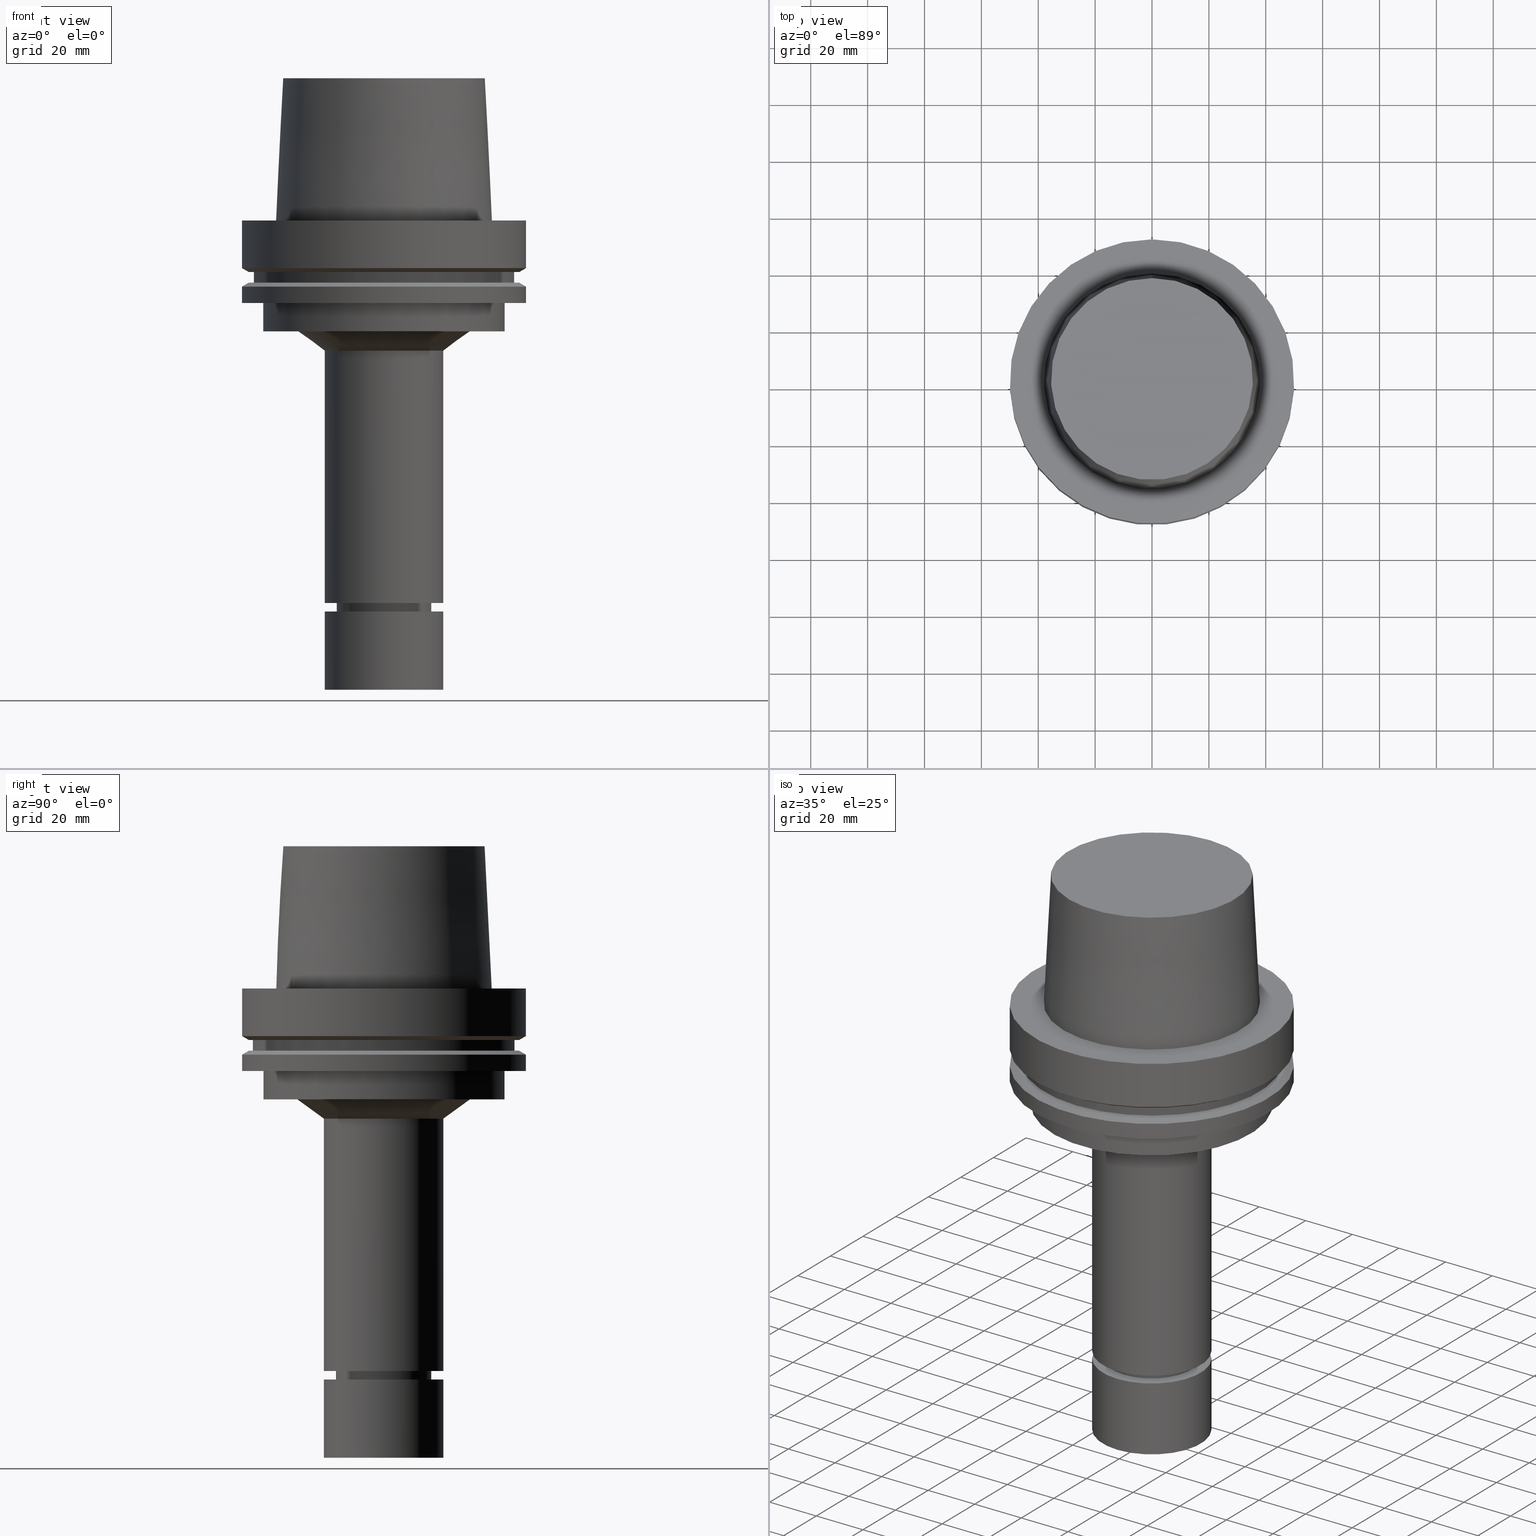
[diagram: canonical four-view strip — front | top / right | iso, engineering-drawing reading convention]
A machine part, canonical four-view strip (front | top / right | iso — engineering-drawing reading convention). The complete STEP part file that produces these views, byte-faithful:
ISO-10303-21;
HEADER;
FILE_DESCRIPTION((''),'1');
FILE_NAME('U:/Translate/02_3D_Field-HP\X2\FF71FF6FFF8CFF9F5916\X0\2013/02_Step_Field-HP\X2\FF71FF6FFF8CFF9F5916\X0\2013/HSK-A100-MEGAER25-165NL.stp','2016-06-22T02:35:38',(''),(''),'Spatial Interop R21 SP3','Kubotek KeyCreator 2011 V10.0.2 (22737)',' ');
FILE_SCHEMA(('automotive_design'));
ENDSEC;
DATA;
#1=MECHANICAL_DESIGN_GEOMETRIC_PRESENTATION_REPRESENTATION(' ',(#14,#15,#16,#17,#18,#19,#20,#21,#22,#23,#24,#25,#26,#27,#28,#29,#30,#31,#32,#33,#34,#35,#36,#37,#38,#39,#40,#41,#42,#43,#44,#45,#46,#47,#48,#49,#50,#51,#52,#53,#54,#55,#56,#57,#58,#59,#60,#61),#10);
#2=PRODUCT_DEFINITION_CONTEXT('',#62,'design');
#3=APPLICATION_PROTOCOL_DEFINITION('INTERNATIONAL STANDARD','automotive_design',1994,#62);
#4=PRODUCT_CATEGORY_RELATIONSHIP('NONE','NONE',#63,#64);
#5=SHAPE_DEFINITION_REPRESENTATION(#65,#66);
#6=PRODUCT_DEFINITION_CONTEXT('',#67,'design');
#7=APPLICATION_PROTOCOL_DEFINITION('INTERNATIONAL STANDARD','automotive_design',1994,#67);
#8=PRODUCT_CATEGORY_RELATIONSHIP('NONE','NONE',#68,#69);
#9=SHAPE_DEFINITION_REPRESENTATION(#70,#71);
#10= (GEOMETRIC_REPRESENTATION_CONTEXT(3)GLOBAL_UNCERTAINTY_ASSIGNED_CONTEXT((#74))GLOBAL_UNIT_ASSIGNED_CONTEXT((#76,#77,#78))REPRESENTATION_CONTEXT('NONE','WORKSPACE'));
#14=STYLED_ITEM('',(#80,#81),#82);
#15=STYLED_ITEM('',(#83),#84);
#16=STYLED_ITEM('',(#85),#86);
#17=STYLED_ITEM('',(#87,#88),#89);
#18=STYLED_ITEM('',(#90,#91),#92);
#19=STYLED_ITEM('',(#93,#94),#95);
#20=STYLED_ITEM('',(#96),#97);
#21=STYLED_ITEM('',(#98,#99),#100);
#22=STYLED_ITEM('',(#101),#102);
#23=STYLED_ITEM('',(#103,#104),#105);
#24=STYLED_ITEM('',(#106,#107),#108);
#25=STYLED_ITEM('',(#109,#110),#111);
#26=STYLED_ITEM('',(#112,#113),#114);
#27=STYLED_ITEM('',(#115),#116);
#28=STYLED_ITEM('',(#117),#118);
#29=STYLED_ITEM('',(#119),#120);
#30=STYLED_ITEM('',(#121,#122),#123);
#31=STYLED_ITEM('',(#124,#125),#126);
#32=STYLED_ITEM('',(#127,#128),#129);
#33=STYLED_ITEM('',(#130,#131),#132);
#34=STYLED_ITEM('',(#133),#134);
#35=STYLED_ITEM('',(#135,#136),#137);
#36=STYLED_ITEM('',(#138,#139),#140);
#37=STYLED_ITEM('',(#141,#142),#143);
#38=STYLED_ITEM('',(#144,#145),#146);
#39=STYLED_ITEM('',(#147,#148),#149);
#40=STYLED_ITEM('',(#150,#151),#152);
#41=STYLED_ITEM('',(#153,#154),#155);
#42=STYLED_ITEM('',(#156),#157);
#43=STYLED_ITEM('',(#158),#159);
#44=STYLED_ITEM('',(#160),#161);
#45=STYLED_ITEM('',(#162,#163),#164);
#46=STYLED_ITEM('',(#165),#166);
#47=STYLED_ITEM('',(#167),#168);
#48=STYLED_ITEM('',(#169),#170);
#49=STYLED_ITEM('',(#171),#172);
#50=STYLED_ITEM('',(#173,#174),#175);
#51=STYLED_ITEM('',(#176),#177);
#52=STYLED_ITEM('',(#178,#179),#180);
#53=STYLED_ITEM('',(#181),#182);
#54=STYLED_ITEM('',(#183),#184);
#55=STYLED_ITEM('',(#185),#186);
#56=STYLED_ITEM('',(#187,#188),#189);
#57=STYLED_ITEM('',(#190,#191),#192);
#58=STYLED_ITEM('',(#193),#194);
#59=STYLED_ITEM('',(#195),#196);
#60=STYLED_ITEM('',(#197),#198);
#61=STYLED_ITEM('',(#199,#200),#201);
#62=APPLICATION_CONTEXT(' ');
#63=PRODUCT_CATEGORY('part','NONE');
#64=PRODUCT_RELATED_PRODUCT_CATEGORY('detail',' ',(#202));
#65=PRODUCT_DEFINITION_SHAPE('NONE','NONE',#203);
#66=ADVANCED_BREP_SHAPE_REPRESENTATION('Unnamed[1]',(#126,#204),#10);
#67=APPLICATION_CONTEXT(' ');
#68=PRODUCT_CATEGORY('part','NONE');
#69=PRODUCT_RELATED_PRODUCT_CATEGORY('detail',' ',(#205));
#70=PRODUCT_DEFINITION_SHAPE('NONE','NONE',#206);
#71=ADVANCED_BREP_SHAPE_REPRESENTATION('Unnamed[1]',(#129,#207),#10);
#74=UNCERTAINTY_MEASURE_WITH_UNIT(LENGTH_MEASURE(1.0E-006),#76,'','');
#76= (CONVERSION_BASED_UNIT('MILLIMETRE',#210)LENGTH_UNIT()NAMED_UNIT(#213));
#77= (NAMED_UNIT(#215)PLANE_ANGLE_UNIT()SI_UNIT($,.RADIAN.));
#78= (NAMED_UNIT(#215)SOLID_ANGLE_UNIT()SI_UNIT($,.STERADIAN.));
#80=PRESENTATION_STYLE_ASSIGNMENT((#221));
#81=PRESENTATION_STYLE_ASSIGNMENT((#222));
#82=ADVANCED_FACE('Unnamed[1]',(#223,#224),#225,.T.);
#83=PRESENTATION_STYLE_ASSIGNMENT((#226));
#84=EDGE_CURVE('Unnamed[1]',#227,#227,#228,.T.);
#85=PRESENTATION_STYLE_ASSIGNMENT((#229));
#86=EDGE_CURVE('Unnamed[1]',#230,#230,#231,.T.);
#87=PRESENTATION_STYLE_ASSIGNMENT((#232));
#88=PRESENTATION_STYLE_ASSIGNMENT((#233));
#89=ADVANCED_FACE('Unnamed[1]',(#234,#235),#236,.T.);
#90=PRESENTATION_STYLE_ASSIGNMENT((#237));
#91=PRESENTATION_STYLE_ASSIGNMENT((#238));
#92=ADVANCED_FACE('Unnamed[1]',(#239,#240),#241,.T.);
#93=PRESENTATION_STYLE_ASSIGNMENT((#242));
#94=PRESENTATION_STYLE_ASSIGNMENT((#243));
#95=ADVANCED_FACE('Unnamed[1]',(#244,#245),#246,.T.);
#96=PRESENTATION_STYLE_ASSIGNMENT((#247));
#97=EDGE_CURVE('Unnamed[1]',#248,#248,#249,.T.);
#98=PRESENTATION_STYLE_ASSIGNMENT((#250));
#99=PRESENTATION_STYLE_ASSIGNMENT((#251));
#100=ADVANCED_FACE('Unnamed[1]',(#252,#253),#254,.T.);
#101=PRESENTATION_STYLE_ASSIGNMENT((#255));
#102=EDGE_CURVE('Unnamed[1]',#256,#256,#257,.T.);
#103=PRESENTATION_STYLE_ASSIGNMENT((#258));
#104=PRESENTATION_STYLE_ASSIGNMENT((#259));
#105=ADVANCED_FACE('Unnamed[1]',(#260,#261),#262,.T.);
#106=PRESENTATION_STYLE_ASSIGNMENT((#263));
#107=PRESENTATION_STYLE_ASSIGNMENT((#264));
#108=ADVANCED_FACE('Unnamed[1]',(#265,#266),#267,.T.);
#109=PRESENTATION_STYLE_ASSIGNMENT((#268));
#110=PRESENTATION_STYLE_ASSIGNMENT((#269));
#111=ADVANCED_FACE('Unnamed[1]',(#270,#271),#272,.T.);
#112=PRESENTATION_STYLE_ASSIGNMENT((#273));
#113=PRESENTATION_STYLE_ASSIGNMENT((#274));
#114=ADVANCED_FACE('Unnamed[1]',(#275,#276),#277,.T.);
#115=PRESENTATION_STYLE_ASSIGNMENT((#278));
#116=EDGE_CURVE('Unnamed[1]',#279,#279,#280,.T.);
#117=PRESENTATION_STYLE_ASSIGNMENT((#281));
#118=EDGE_CURVE('Unnamed[1]',#282,#282,#283,.T.);
#119=PRESENTATION_STYLE_ASSIGNMENT((#284));
#120=EDGE_CURVE('Unnamed[1]',#285,#285,#286,.T.);
#121=PRESENTATION_STYLE_ASSIGNMENT((#287));
#122=PRESENTATION_STYLE_ASSIGNMENT((#288));
#123=ADVANCED_FACE('Unnamed[1]',(#289,#290),#291,.T.);
#124=PRESENTATION_STYLE_ASSIGNMENT((#292));
#125=PRESENTATION_STYLE_ASSIGNMENT((#293));
#126=MANIFOLD_SOLID_BREP('Unnamed[1]',#294);
#127=PRESENTATION_STYLE_ASSIGNMENT((#295));
#128=PRESENTATION_STYLE_ASSIGNMENT((#296));
#129=MANIFOLD_SOLID_BREP('Unnamed[1]',#297);
#130=PRESENTATION_STYLE_ASSIGNMENT((#298));
#131=PRESENTATION_STYLE_ASSIGNMENT((#299));
#132=ADVANCED_FACE('Unnamed[1]',(#300,#301),#302,.T.);
#133=PRESENTATION_STYLE_ASSIGNMENT((#303));
#134=EDGE_CURVE('Unnamed[1]',#304,#304,#305,.T.);
#135=PRESENTATION_STYLE_ASSIGNMENT((#306));
#136=PRESENTATION_STYLE_ASSIGNMENT((#307));
#137=ADVANCED_FACE('Unnamed[1]',(#308,#309),#310,.T.);
#138=PRESENTATION_STYLE_ASSIGNMENT((#311));
#139=PRESENTATION_STYLE_ASSIGNMENT((#312));
#140=ADVANCED_FACE('Unnamed[1]',(#313),#314,.T.);
#141=PRESENTATION_STYLE_ASSIGNMENT((#315));
#142=PRESENTATION_STYLE_ASSIGNMENT((#316));
#143=ADVANCED_FACE('Unnamed[1]',(#317,#318),#319,.T.);
#144=PRESENTATION_STYLE_ASSIGNMENT((#320));
#145=PRESENTATION_STYLE_ASSIGNMENT((#321));
#146=ADVANCED_FACE('Unnamed[1]',(#322,#323),#324,.T.);
#147=PRESENTATION_STYLE_ASSIGNMENT((#325));
#148=PRESENTATION_STYLE_ASSIGNMENT((#326));
#149=ADVANCED_FACE('Unnamed[1]',(#327),#328,.T.);
#150=PRESENTATION_STYLE_ASSIGNMENT((#329));
#151=PRESENTATION_STYLE_ASSIGNMENT((#330));
#152=ADVANCED_FACE('Unnamed[1]',(#331,#332),#333,.T.);
#153=PRESENTATION_STYLE_ASSIGNMENT((#334));
#154=PRESENTATION_STYLE_ASSIGNMENT((#335));
#155=ADVANCED_FACE('Unnamed[1]',(#336,#337),#338,.T.);
#156=PRESENTATION_STYLE_ASSIGNMENT((#339));
#157=EDGE_CURVE('Unnamed[1]',#340,#340,#341,.T.);
#158=PRESENTATION_STYLE_ASSIGNMENT((#342));
#159=EDGE_CURVE('Unnamed[1]',#343,#343,#344,.T.);
#160=PRESENTATION_STYLE_ASSIGNMENT((#345));
#161=EDGE_CURVE('Unnamed[1]',#346,#346,#347,.T.);
#162=PRESENTATION_STYLE_ASSIGNMENT((#348));
#163=PRESENTATION_STYLE_ASSIGNMENT((#349));
#164=ADVANCED_FACE('Unnamed[1]',(#350,#351),#352,.T.);
#165=PRESENTATION_STYLE_ASSIGNMENT((#353));
#166=EDGE_CURVE('Unnamed[1]',#354,#354,#355,.T.);
#167=PRESENTATION_STYLE_ASSIGNMENT((#356));
#168=EDGE_CURVE('Unnamed[1]',#357,#357,#358,.T.);
#169=PRESENTATION_STYLE_ASSIGNMENT((#359));
#170=EDGE_CURVE('Unnamed[1]',#360,#360,#361,.T.);
#171=PRESENTATION_STYLE_ASSIGNMENT((#362));
#172=EDGE_CURVE('Unnamed[1]',#363,#363,#364,.T.);
#173=PRESENTATION_STYLE_ASSIGNMENT((#365));
#174=PRESENTATION_STYLE_ASSIGNMENT((#366));
#175=ADVANCED_FACE('Unnamed[1]',(#367,#368),#369,.T.);
#176=PRESENTATION_STYLE_ASSIGNMENT((#370));
#177=EDGE_CURVE('Unnamed[1]',#371,#371,#372,.T.);
#178=PRESENTATION_STYLE_ASSIGNMENT((#373));
#179=PRESENTATION_STYLE_ASSIGNMENT((#374));
#180=ADVANCED_FACE('Unnamed[1]',(#375,#376),#377,.T.);
#181=PRESENTATION_STYLE_ASSIGNMENT((#378));
#182=EDGE_CURVE('Unnamed[1]',#379,#379,#380,.T.);
#183=PRESENTATION_STYLE_ASSIGNMENT((#381));
#184=EDGE_CURVE('Unnamed[1]',#382,#382,#383,.T.);
#185=PRESENTATION_STYLE_ASSIGNMENT((#384));
#186=EDGE_CURVE('Unnamed[1]',#385,#385,#386,.T.);
#187=PRESENTATION_STYLE_ASSIGNMENT((#387));
#188=PRESENTATION_STYLE_ASSIGNMENT((#388));
#189=ADVANCED_FACE('Unnamed[1]',(#389,#390),#391,.T.);
#190=PRESENTATION_STYLE_ASSIGNMENT((#392));
#191=PRESENTATION_STYLE_ASSIGNMENT((#393));
#192=ADVANCED_FACE('Unnamed[1]',(#394),#395,.T.);
#193=PRESENTATION_STYLE_ASSIGNMENT((#396));
#194=EDGE_CURVE('Unnamed[1]',#397,#397,#398,.T.);
#195=PRESENTATION_STYLE_ASSIGNMENT((#399));
#196=EDGE_CURVE('Unnamed[1]',#400,#400,#401,.T.);
#197=PRESENTATION_STYLE_ASSIGNMENT((#402));
#198=EDGE_CURVE('Unnamed[1]',#403,#403,#404,.T.);
#199=PRESENTATION_STYLE_ASSIGNMENT((#405));
#200=PRESENTATION_STYLE_ASSIGNMENT((#406));
#201=ADVANCED_FACE('Unnamed[1]',(#407),#408,.T.);
#202=PRODUCT('Unnamed[1]','Unnamed[1]','PART-Unnamed[1]-DESC',(#409));
#203=PRODUCT_DEFINITION('NONE','NONE',#410,#2);
#204=AXIS2_PLACEMENT_3D('',#411,#412,#413);
#205=PRODUCT('Unnamed[1]','Unnamed[1]','PART-Unnamed[1]-DESC',(#414));
#206=PRODUCT_DEFINITION('NONE','NONE',#415,#6);
#207=AXIS2_PLACEMENT_3D('',#416,#417,#418);
#210=LENGTH_MEASURE_WITH_UNIT(LENGTH_MEASURE(1.0),#419);
#213=DIMENSIONAL_EXPONENTS(1.0,0.0,0.0,0.0,0.0,0.0,0.0);
#215=DIMENSIONAL_EXPONENTS(0.0,0.0,0.0,0.0,0.0,0.0,0.0);
#221=SURFACE_STYLE_USAGE(.BOTH.,#420);
#222=CURVE_STYLE('',#421,POSITIVE_LENGTH_MEASURE(1000.0),#422);
#223=FACE_BOUND('',#423,.T.);
#224=FACE_BOUND('',#424,.T.);
#225=CONICAL_SURFACE('',#425,25.6596647228031,0.942916776537841);
#226=CURVE_STYLE('',#426,POSITIVE_LENGTH_MEASURE(1000.0),#427);
#227=VERTEX_POINT('',#428);
#228=CIRCLE('',#429,46.0);
#229=CURVE_STYLE('',#430,POSITIVE_LENGTH_MEASURE(1000.0),#431);
#230=VERTEX_POINT('',#432);
#231=CIRCLE('',#433,30.3193294456062);
#232=SURFACE_STYLE_USAGE(.BOTH.,#434);
#233=CURVE_STYLE('',#435,POSITIVE_LENGTH_MEASURE(1000.0),#436);
#234=FACE_OUTER_BOUND('',#437,.T.);
#235=FACE_BOUND('',#438,.T.);
#236=PLANE('',#439);
#237=SURFACE_STYLE_USAGE(.BOTH.,#440);
#238=CURVE_STYLE('',#441,POSITIVE_LENGTH_MEASURE(1000.0),#442);
#239=FACE_BOUND('',#443,.T.);
#240=FACE_BOUND('',#444,.T.);
#241=CYLINDRICAL_SURFACE('',#445,46.0);
#242=SURFACE_STYLE_USAGE(.BOTH.,#446);
#243=CURVE_STYLE('',#447,POSITIVE_LENGTH_MEASURE(1000.0),#448);
#244=FACE_BOUND('',#449,.T.);
#245=FACE_BOUND('',#450,.T.);
#246=CONICAL_SURFACE('',#451,15.4500000000003,0.523598775598051);
#247=CURVE_STYLE('',#452,POSITIVE_LENGTH_MEASURE(1000.0),#453);
#248=VERTEX_POINT('',#454);
#249=CIRCLE('',#455,47.62259526);
#250=SURFACE_STYLE_USAGE(.BOTH.,#456);
#251=CURVE_STYLE('',#457,POSITIVE_LENGTH_MEASURE(1000.0),#458);
#252=FACE_BOUND('',#459,.T.);
#253=FACE_BOUND('',#460,.T.);
#254=CYLINDRICAL_SURFACE('',#461,21.0);
#255=CURVE_STYLE('',#462,POSITIVE_LENGTH_MEASURE(1000.0),#463);
#256=VERTEX_POINT('',#464);
#257=CIRCLE('',#465,47.62259526);
#258=SURFACE_STYLE_USAGE(.BOTH.,#466);
#259=CURVE_STYLE('',#467,POSITIVE_LENGTH_MEASURE(1000.0),#468);
#260=FACE_BOUND('',#469,.T.);
#261=FACE_BOUND('',#470,.T.);
#262=CONICAL_SURFACE('',#471,36.7500000007484,0.0499583956894843);
#263=SURFACE_STYLE_USAGE(.BOTH.,#472);
#264=CURVE_STYLE('',#473,POSITIVE_LENGTH_MEASURE(1000.0),#474);
#265=FACE_BOUND('',#475,.T.);
#266=FACE_OUTER_BOUND('',#476,.T.);
#267=PLANE('',#477);
#268=SURFACE_STYLE_USAGE(.BOTH.,#478);
#269=CURVE_STYLE('',#479,POSITIVE_LENGTH_MEASURE(1000.0),#480);
#270=FACE_BOUND('',#481,.T.);
#271=FACE_BOUND('',#482,.T.);
#272=CONICAL_SURFACE('',#483,48.81129763,1.04719755328238);
#273=SURFACE_STYLE_USAGE(.BOTH.,#484);
#274=CURVE_STYLE('',#485,POSITIVE_LENGTH_MEASURE(1000.0),#486);
#275=FACE_BOUND('',#487,.T.);
#276=FACE_BOUND('',#488,.T.);
#277=CYLINDRICAL_SURFACE('',#489,50.0);
#278=CURVE_STYLE('',#490,POSITIVE_LENGTH_MEASURE(1000.0),#491);
#279=VERTEX_POINT('',#492);
#280=CIRCLE('',#493,16.7499999999907);
#281=CURVE_STYLE('',#494,POSITIVE_LENGTH_MEASURE(1000.0),#495);
#282=VERTEX_POINT('',#496);
#283=CIRCLE('',#497,21.0);
#284=CURVE_STYLE('',#498,POSITIVE_LENGTH_MEASURE(1000.0),#499);
#285=VERTEX_POINT('',#500);
#286=CIRCLE('',#501,35.5000000015618);
#287=SURFACE_STYLE_USAGE(.BOTH.,#502);
#288=CURVE_STYLE('',#503,POSITIVE_LENGTH_MEASURE(1000.0),#504);
#289=FACE_BOUND('',#505,.T.);
#290=FACE_BOUND('',#506,.T.);
#291=CYLINDRICAL_SURFACE('',#507,50.0);
#292=SURFACE_STYLE_USAGE(.BOTH.,#508);
#293=CURVE_STYLE('',#509,POSITIVE_LENGTH_MEASURE(1000.0),#510);
#294=CLOSED_SHELL('',(#140,#105,#89,#123,#111,#180,#92,#175,#152,#114,#164,#137,#108,#82,#132,#155,#189,#143,#146,#95,#149));
#295=SURFACE_STYLE_USAGE(.BOTH.,#511);
#296=CURVE_STYLE('',#512,POSITIVE_LENGTH_MEASURE(1000.0),#513);
#297=CLOSED_SHELL('',(#201,#192,#100));
#298=SURFACE_STYLE_USAGE(.BOTH.,#514);
#299=CURVE_STYLE('',#515,POSITIVE_LENGTH_MEASURE(1000.0),#516);
#300=FACE_BOUND('',#517,.T.);
#301=FACE_BOUND('',#518,.T.);
#302=CYLINDRICAL_SURFACE('',#519,21.0);
#303=CURVE_STYLE('',#520,POSITIVE_LENGTH_MEASURE(1000.0),#521);
#304=VERTEX_POINT('',#522);
#305=CIRCLE('',#523,21.0);
#306=SURFACE_STYLE_USAGE(.BOTH.,#524);
#307=CURVE_STYLE('',#525,POSITIVE_LENGTH_MEASURE(1000.0),#526);
#308=FACE_BOUND('',#527,.T.);
#309=FACE_BOUND('',#528,.T.);
#310=CYLINDRICAL_SURFACE('',#529,42.5);
#311=SURFACE_STYLE_USAGE(.BOTH.,#530);
#312=CURVE_STYLE('',#531,POSITIVE_LENGTH_MEASURE(1000.0),#532);
#313=FACE_OUTER_BOUND('',#533,.T.);
#314=PLANE('',#534);
#315=SURFACE_STYLE_USAGE(.BOTH.,#535);
#316=CURVE_STYLE('',#536,POSITIVE_LENGTH_MEASURE(1000.0),#537);
#317=FACE_BOUND('',#538,.T.);
#318=FACE_BOUND('',#539,.T.);
#319=CONICAL_SURFACE('',#540,16.3750000000008,0.846178977407518);
#320=SURFACE_STYLE_USAGE(.BOTH.,#541);
#321=CURVE_STYLE('',#542,POSITIVE_LENGTH_MEASURE(1000.0),#543);
#322=FACE_BOUND('',#544,.T.);
#323=FACE_BOUND('',#545,.T.);
#324=CYLINDRICAL_SURFACE('',#546,16.0);
#325=SURFACE_STYLE_USAGE(.BOTH.,#547);
#326=CURVE_STYLE('',#548,POSITIVE_LENGTH_MEASURE(1000.0),#549);
#327=FACE_OUTER_BOUND('',#550,.T.);
#328=PLANE('',#551);
#329=SURFACE_STYLE_USAGE(.BOTH.,#552);
#330=CURVE_STYLE('',#553,POSITIVE_LENGTH_MEASURE(1000.0),#554);
#331=FACE_BOUND('',#555,.T.);
#332=FACE_BOUND('',#556,.T.);
#333=CONICAL_SURFACE('',#557,48.81129763,1.04719755328238);
#334=SURFACE_STYLE_USAGE(.BOTH.,#558);
#335=CURVE_STYLE('',#559,POSITIVE_LENGTH_MEASURE(1000.0),#560);
#336=FACE_BOUND('',#561,.T.);
#337=FACE_OUTER_BOUND('',#562,.T.);
#338=PLANE('',#563);
#339=CURVE_STYLE('',#564,POSITIVE_LENGTH_MEASURE(1000.0),#565);
#340=VERTEX_POINT('',#566);
#341=CIRCLE('',#567,37.9999999999349);
#342=CURVE_STYLE('',#568,POSITIVE_LENGTH_MEASURE(1000.0),#569);
#343=VERTEX_POINT('',#570);
#344=CIRCLE('',#571,46.0);
#345=CURVE_STYLE('',#572,POSITIVE_LENGTH_MEASURE(1000.0),#573);
#346=VERTEX_POINT('',#574);
#347=CIRCLE('',#575,50.0);
#348=SURFACE_STYLE_USAGE(.BOTH.,#576);
#349=CURVE_STYLE('',#577,POSITIVE_LENGTH_MEASURE(1000.0),#578);
#350=FACE_BOUND('',#579,.T.);
#351=FACE_OUTER_BOUND('',#580,.T.);
#352=PLANE('',#581);
#353=CURVE_STYLE('',#582,POSITIVE_LENGTH_MEASURE(1000.0),#583);
#354=VERTEX_POINT('',#584);
#355=CIRCLE('',#585,50.0);
#356=CURVE_STYLE('',#586,POSITIVE_LENGTH_MEASURE(1000.0),#587);
#357=VERTEX_POINT('',#588);
#358=CIRCLE('',#589,42.5);
#359=CURVE_STYLE('',#590,POSITIVE_LENGTH_MEASURE(1000.0),#591);
#360=VERTEX_POINT('',#592);
#361=CIRCLE('',#593,21.0);
#362=CURVE_STYLE('',#594,POSITIVE_LENGTH_MEASURE(1000.0),#595);
#363=VERTEX_POINT('',#596);
#364=CIRCLE('',#597,16.7500000000017);
#365=SURFACE_STYLE_USAGE(.BOTH.,#598);
#366=CURVE_STYLE('',#599,POSITIVE_LENGTH_MEASURE(1000.0),#600);
#367=FACE_OUTER_BOUND('',#601,.T.);
#368=FACE_BOUND('',#602,.T.);
#369=PLANE('',#603);
#370=CURVE_STYLE('',#604,POSITIVE_LENGTH_MEASURE(1000.0),#605);
#371=VERTEX_POINT('',#606);
#372=CIRCLE('',#607,50.0);
#373=SURFACE_STYLE_USAGE(.BOTH.,#608);
#374=CURVE_STYLE('',#609,POSITIVE_LENGTH_MEASURE(1000.0),#610);
#375=FACE_BOUND('',#611,.T.);
#376=FACE_OUTER_BOUND('',#612,.T.);
#377=PLANE('',#613);
#378=CURVE_STYLE('',#614,POSITIVE_LENGTH_MEASURE(1000.0),#615);
#379=VERTEX_POINT('',#616);
#380=CIRCLE('',#617,16.0);
#381=CURVE_STYLE('',#618,POSITIVE_LENGTH_MEASURE(1000.0),#619);
#382=VERTEX_POINT('',#620);
#383=CIRCLE('',#621,16.0);
#384=CURVE_STYLE('',#622,POSITIVE_LENGTH_MEASURE(1000.0),#623);
#385=VERTEX_POINT('',#624);
#386=CIRCLE('',#625,14.9000000000006);
#387=SURFACE_STYLE_USAGE(.BOTH.,#626);
#388=CURVE_STYLE('',#627,POSITIVE_LENGTH_MEASURE(1000.0),#628);
#389=FACE_BOUND('',#629,.T.);
#390=FACE_BOUND('',#630,.T.);
#391=CYLINDRICAL_SURFACE('',#631,16.7499999999962);
#392=SURFACE_STYLE_USAGE(.BOTH.,#632);
#393=CURVE_STYLE('',#633,POSITIVE_LENGTH_MEASURE(1000.0),#634);
#394=FACE_OUTER_BOUND('',#635,.T.);
#395=PLANE('',#636);
#396=CURVE_STYLE('',#637,POSITIVE_LENGTH_MEASURE(1000.0),#638);
#397=VERTEX_POINT('',#639);
#398=CIRCLE('',#640,21.0);
#399=CURVE_STYLE('',#641,POSITIVE_LENGTH_MEASURE(1000.0),#642);
#400=VERTEX_POINT('',#643);
#401=CIRCLE('',#644,42.5);
#402=CURVE_STYLE('',#645,POSITIVE_LENGTH_MEASURE(1000.0),#646);
#403=VERTEX_POINT('',#647);
#404=CIRCLE('',#648,50.0);
#405=SURFACE_STYLE_USAGE(.BOTH.,#649);
#406=CURVE_STYLE('',#650,POSITIVE_LENGTH_MEASURE(1000.0),#651);
#407=FACE_OUTER_BOUND('',#652,.T.);
#408=PLANE('',#653);
#409=PRODUCT_CONTEXT('',#62,'mechanical');
#410=PRODUCT_DEFINITION_FORMATION_WITH_SPECIFIED_SOURCE(' ','NONE',#202,.NOT_KNOWN.);
#411=CARTESIAN_POINT('',(0.0,0.0,0.0));
#412=DIRECTION('',(0.0,0.0,1.0));
#413=DIRECTION('',(1.0,0.0,0.0));
#414=PRODUCT_CONTEXT('',#67,'mechanical');
#415=PRODUCT_DEFINITION_FORMATION_WITH_SPECIFIED_SOURCE(' ','NONE',#205,.NOT_KNOWN.);
#416=CARTESIAN_POINT('',(0.0,0.0,0.0));
#417=DIRECTION('',(0.0,0.0,1.0));
#418=DIRECTION('',(1.0,0.0,0.0));
#419= (NAMED_UNIT(#213)LENGTH_UNIT()SI_UNIT(.MILLI.,.METRE.));
#420=SURFACE_SIDE_STYLE('',(#655));
#421=DRAUGHTING_PRE_DEFINED_CURVE_FONT('continuous');
#422=COLOUR_RGB('',0.0,1.0,0.0);
#423=EDGE_LOOP('',(#656));
#424=EDGE_LOOP('',(#657));
#425=AXIS2_PLACEMENT_3D('',#658,#659,#660);
#426=DRAUGHTING_PRE_DEFINED_CURVE_FONT('continuous');
#427=COLOUR_RGB('',0.0,1.0,0.0);
#428=CARTESIAN_POINT('',(1.10983616172729E-015,46.0,-18.125));
#429=AXIS2_PLACEMENT_3D('',#661,#662,#663);
#430=DRAUGHTING_PRE_DEFINED_CURVE_FONT('continuous');
#431=COLOUR_RGB('',0.0,1.0,0.0);
#432=CARTESIAN_POINT('',(2.38806125833734E-015,30.3193294456062,-39.0));
#433=AXIS2_PLACEMENT_3D('',#664,#665,#666);
#434=SURFACE_SIDE_STYLE('',(#667));
#435=DRAUGHTING_PRE_DEFINED_CURVE_FONT('continuous');
#436=COLOUR_RGB('',0.0,1.0,0.0);
#437=EDGE_LOOP('',(#668));
#438=EDGE_LOOP('',(#669));
#439=AXIS2_PLACEMENT_3D('',#670,#671,#672);
#440=SURFACE_SIDE_STYLE('',(#673));
#441=DRAUGHTING_PRE_DEFINED_CURVE_FONT('continuous');
#442=COLOUR_RGB('',0.0,1.0,0.0);
#443=EDGE_LOOP('',(#674));
#444=EDGE_LOOP('',(#675));
#445=AXIS2_PLACEMENT_3D('',#676,#677,#678);
#446=SURFACE_SIDE_STYLE('',(#679));
#447=DRAUGHTING_PRE_DEFINED_CURVE_FONT('continuous');
#448=COLOUR_RGB('',0.0,1.0,0.0);
#449=EDGE_LOOP('',(#680));
#450=EDGE_LOOP('',(#681));
#451=AXIS2_PLACEMENT_3D('',#682,#683,#684);
#452=DRAUGHTING_PRE_DEFINED_CURVE_FONT('continuous');
#453=COLOUR_RGB('',0.0,1.0,0.0);
#454=CARTESIAN_POINT('',(1.10983616172729E-015,47.62259526,-18.125));
#455=AXIS2_PLACEMENT_3D('',#685,#686,#687);
#456=SURFACE_SIDE_STYLE('',(#688));
#457=DRAUGHTING_PRE_DEFINED_CURVE_FONT('continuous');
#458=COLOUR_RGB('',0.0,1.0,0.0);
#459=EDGE_LOOP('',(#689));
#460=EDGE_LOOP('',(#690));
#461=AXIS2_PLACEMENT_3D('',#691,#692,#693);
#462=DRAUGHTING_PRE_DEFINED_CURVE_FONT('continuous');
#463=COLOUR_RGB('',0.0,1.0,0.0);
#464=CARTESIAN_POINT('',(1.33945743656742E-015,47.62259526,-21.875));
#465=AXIS2_PLACEMENT_3D('',#694,#695,#696);
#466=SURFACE_SIDE_STYLE('',(#697));
#467=DRAUGHTING_PRE_DEFINED_CURVE_FONT('continuous');
#468=COLOUR_RGB('',0.0,1.0,0.0);
#469=EDGE_LOOP('',(#698));
#470=EDGE_LOOP('',(#699));
#471=AXIS2_PLACEMENT_3D('',#700,#701,#702);
#472=SURFACE_SIDE_STYLE('',(#703));
#473=DRAUGHTING_PRE_DEFINED_CURVE_FONT('continuous');
#474=COLOUR_RGB('',0.0,1.0,0.0);
#475=EDGE_LOOP('',(#704));
#476=EDGE_LOOP('',(#705));
#477=AXIS2_PLACEMENT_3D('',#706,#707,#708);
#478=SURFACE_SIDE_STYLE('',(#709));
#479=DRAUGHTING_PRE_DEFINED_CURVE_FONT('continuous');
#480=COLOUR_RGB('',0.0,1.0,0.0);
#481=EDGE_LOOP('',(#710));
#482=EDGE_LOOP('',(#711));
#483=AXIS2_PLACEMENT_3D('',#712,#713,#714);
#484=SURFACE_SIDE_STYLE('',(#715));
#485=DRAUGHTING_PRE_DEFINED_CURVE_FONT('continuous');
#486=COLOUR_RGB('',0.0,1.0,0.0);
#487=EDGE_LOOP('',(#716));
#488=EDGE_LOOP('',(#717));
#489=AXIS2_PLACEMENT_3D('',#718,#719,#720);
#490=DRAUGHTING_PRE_DEFINED_CURVE_FONT('continuous');
#491=COLOUR_RGB('',0.0,1.0,0.0);
#492=CARTESIAN_POINT('',(8.2357497242659E-015,16.7499999999907,-134.499999999999));
#493=AXIS2_PLACEMENT_3D('',#721,#722,#723);
#494=DRAUGHTING_PRE_DEFINED_CURVE_FONT('continuous');
#495=COLOUR_RGB('',0.0,1.0,0.0);
#496=CARTESIAN_POINT('',(8.41944674413805E-015,21.0,-137.5));
#497=AXIS2_PLACEMENT_3D('',#724,#725,#726);
#498=DRAUGHTING_PRE_DEFINED_CURVE_FONT('continuous');
#499=COLOUR_RGB('',0.0,1.0,0.0);
#500=CARTESIAN_POINT('',(-3.06161699786838E-015,35.5000000015618,50.0));
#501=AXIS2_PLACEMENT_3D('',#727,#728,#729);
#502=SURFACE_SIDE_STYLE('',(#730));
#503=DRAUGHTING_PRE_DEFINED_CURVE_FONT('continuous');
#504=COLOUR_RGB('',0.0,1.0,0.0);
#505=EDGE_LOOP('',(#731));
#506=EDGE_LOOP('',(#732));
#507=AXIS2_PLACEMENT_3D('',#733,#734,#735);
#508=SURFACE_SIDE_STYLE('',(#736));
#509=DRAUGHTING_PRE_DEFINED_CURVE_FONT('continuous');
#510=COLOUR_RGB('',0.0,1.0,0.0);
#511=SURFACE_SIDE_STYLE('',(#737));
#512=DRAUGHTING_PRE_DEFINED_CURVE_FONT('continuous');
#513=COLOUR_RGB('',0.0,1.0,0.0);
#514=SURFACE_SIDE_STYLE('',(#738));
#515=DRAUGHTING_PRE_DEFINED_CURVE_FONT('continuous');
#516=COLOUR_RGB('',0.0,1.0,0.0);
#517=EDGE_LOOP('',(#739));
#518=EDGE_LOOP('',(#740));
#519=AXIS2_PLACEMENT_3D('',#741,#742,#743);
#520=DRAUGHTING_PRE_DEFINED_CURVE_FONT('continuous');
#521=COLOUR_RGB('',0.0,1.0,0.0);
#522=CARTESIAN_POINT('',(1.01033360929657E-014,21.0,-165.0));
#523=AXIS2_PLACEMENT_3D('',#744,#745,#746);
#524=SURFACE_SIDE_STYLE('',(#747));
#525=DRAUGHTING_PRE_DEFINED_CURVE_FONT('continuous');
#526=COLOUR_RGB('',0.0,1.0,0.0);
#527=EDGE_LOOP('',(#748));
#528=EDGE_LOOP('',(#749));
#529=AXIS2_PLACEMENT_3D('',#750,#751,#752);
#530=SURFACE_SIDE_STYLE('',(#753));
#531=DRAUGHTING_PRE_DEFINED_CURVE_FONT('continuous');
#532=COLOUR_RGB('',0.0,1.0,0.0);
#533=EDGE_LOOP('',(#754));
#534=AXIS2_PLACEMENT_3D('',#755,#756,#757);
#535=SURFACE_SIDE_STYLE('',(#758));
#536=DRAUGHTING_PRE_DEFINED_CURVE_FONT('continuous');
#537=COLOUR_RGB('',0.0,1.0,0.0);
#538=EDGE_LOOP('',(#759));
#539=EDGE_LOOP('',(#760));
#540=AXIS2_PLACEMENT_3D('',#761,#762,#763);
#541=SURFACE_SIDE_STYLE('',(#764));
#542=DRAUGHTING_PRE_DEFINED_CURVE_FONT('continuous');
#543=COLOUR_RGB('',0.0,1.0,0.0);
#544=EDGE_LOOP('',(#765));
#545=EDGE_LOOP('',(#766));
#546=AXIS2_PLACEMENT_3D('',#767,#768,#769);
#547=SURFACE_SIDE_STYLE('',(#770));
#548=DRAUGHTING_PRE_DEFINED_CURVE_FONT('continuous');
#549=COLOUR_RGB('',0.0,1.0,0.0);
#550=EDGE_LOOP('',(#771));
#551=AXIS2_PLACEMENT_3D('',#772,#773,#774);
#552=SURFACE_SIDE_STYLE('',(#775));
#553=DRAUGHTING_PRE_DEFINED_CURVE_FONT('continuous');
#554=COLOUR_RGB('',0.0,1.0,0.0);
#555=EDGE_LOOP('',(#776));
#556=EDGE_LOOP('',(#777));
#557=AXIS2_PLACEMENT_3D('',#778,#779,#780);
#558=SURFACE_SIDE_STYLE('',(#781));
#559=DRAUGHTING_PRE_DEFINED_CURVE_FONT('continuous');
#560=COLOUR_RGB('',0.0,1.0,0.0);
#561=EDGE_LOOP('',(#782));
#562=EDGE_LOOP('',(#783));
#563=AXIS2_PLACEMENT_3D('',#784,#785,#786);
#564=DRAUGHTING_PRE_DEFINED_CURVE_FONT('continuous');
#565=COLOUR_RGB('',0.0,1.0,0.0);
#566=CARTESIAN_POINT('',(-3.3636548776863E-032,37.9999999999349,-2.44634216324803E-015));
#567=AXIS2_PLACEMENT_3D('',#787,#788,#789);
#568=DRAUGHTING_PRE_DEFINED_CURVE_FONT('continuous');
#569=COLOUR_RGB('',0.0,1.0,0.0);
#570=CARTESIAN_POINT('',(1.33945743656742E-015,46.0,-21.875));
#571=AXIS2_PLACEMENT_3D('',#790,#791,#792);
#572=DRAUGHTING_PRE_DEFINED_CURVE_FONT('continuous');
#573=COLOUR_RGB('',0.0,1.0,0.0);
#574=CARTESIAN_POINT('',(1.77573785876366E-015,50.0,-29.0));
#575=AXIS2_PLACEMENT_3D('',#793,#794,#795);
#576=SURFACE_SIDE_STYLE('',(#796));
#577=DRAUGHTING_PRE_DEFINED_CURVE_FONT('continuous');
#578=COLOUR_RGB('',0.0,1.0,0.0);
#579=EDGE_LOOP('',(#797));
#580=EDGE_LOOP('',(#798));
#581=AXIS2_PLACEMENT_3D('',#799,#800,#801);
#582=DRAUGHTING_PRE_DEFINED_CURVE_FONT('continuous');
#583=COLOUR_RGB('',0.0,1.0,0.0);
#584=CARTESIAN_POINT('',(1.0257889421431E-015,50.0,-16.75240474));
#585=AXIS2_PLACEMENT_3D('',#802,#803,#804);
#586=DRAUGHTING_PRE_DEFINED_CURVE_FONT('continuous');
#587=COLOUR_RGB('',0.0,1.0,0.0);
#588=CARTESIAN_POINT('',(1.77573785876366E-015,42.5,-29.0));
#589=AXIS2_PLACEMENT_3D('',#805,#806,#807);
#590=DRAUGHTING_PRE_DEFINED_CURVE_FONT('continuous');
#591=COLOUR_RGB('',0.0,1.0,0.0);
#592=CARTESIAN_POINT('',(8.23574972426594E-015,21.0,-134.5));
#593=AXIS2_PLACEMENT_3D('',#808,#809,#810);
#594=DRAUGHTING_PRE_DEFINED_CURVE_FONT('continuous');
#595=COLOUR_RGB('',0.0,1.0,0.0);
#596=CARTESIAN_POINT('',(8.60114298906008E-015,16.7500000000017,-140.467324865398));
#597=AXIS2_PLACEMENT_3D('',#811,#812,#813);
#598=SURFACE_SIDE_STYLE('',(#814));
#599=DRAUGHTING_PRE_DEFINED_CURVE_FONT('continuous');
#600=COLOUR_RGB('',0.0,1.0,0.0);
#601=EDGE_LOOP('',(#815));
#602=EDGE_LOOP('',(#816));
#603=AXIS2_PLACEMENT_3D('',#817,#818,#819);
#604=DRAUGHTING_PRE_DEFINED_CURVE_FONT('continuous');
#605=COLOUR_RGB('',0.0,1.0,0.0);
#606=CARTESIAN_POINT('',(-1.81547968506605E-031,50.0,-9.76766004263236E-016));
#607=AXIS2_PLACEMENT_3D('',#820,#821,#822);
#608=SURFACE_SIDE_STYLE('',(#823));
#609=DRAUGHTING_PRE_DEFINED_CURVE_FONT('continuous');
#610=COLOUR_RGB('',0.0,1.0,0.0);
#611=EDGE_LOOP('',(#824));
#612=EDGE_LOOP('',(#825));
#613=AXIS2_PLACEMENT_3D('',#826,#827,#828);
#614=DRAUGHTING_PRE_DEFINED_CURVE_FONT('continuous');
#615=COLOUR_RGB('',0.0,1.0,0.0);
#616=CARTESIAN_POINT('',(8.64179837321123E-015,16.0,-141.131277674967));
#617=AXIS2_PLACEMENT_3D('',#829,#830,#831);
#618=DRAUGHTING_PRE_DEFINED_CURVE_FONT('continuous');
#619=COLOUR_RGB('',0.0,1.0,0.0);
#620=CARTESIAN_POINT('',(9.36210294914078E-015,16.0,-152.894744111674));
#621=AXIS2_PLACEMENT_3D('',#832,#833,#834);
#622=DRAUGHTING_PRE_DEFINED_CURVE_FONT('continuous');
#623=COLOUR_RGB('',0.0,1.0,0.0);
#624=CARTESIAN_POINT('',(9.47876622540053E-015,14.9000000000007,-154.8));
#625=AXIS2_PLACEMENT_3D('',#835,#836,#837);
#626=SURFACE_SIDE_STYLE('',(#838));
#627=DRAUGHTING_PRE_DEFINED_CURVE_FONT('continuous');
#628=COLOUR_RGB('',0.0,1.0,0.0);
#629=EDGE_LOOP('',(#839));
#630=EDGE_LOOP('',(#840));
#631=AXIS2_PLACEMENT_3D('',#841,#842,#843);
#632=SURFACE_SIDE_STYLE('',(#844));
#633=DRAUGHTING_PRE_DEFINED_CURVE_FONT('continuous');
#634=COLOUR_RGB('',0.0,1.0,0.0);
#635=EDGE_LOOP('',(#845));
#636=AXIS2_PLACEMENT_3D('',#846,#847,#848);
#637=DRAUGHTING_PRE_DEFINED_CURVE_FONT('continuous');
#638=COLOUR_RGB('',0.0,1.0,0.0);
#639=CARTESIAN_POINT('',(2.80227603553221E-015,21.0,-45.76464067));
#640=AXIS2_PLACEMENT_3D('',#849,#850,#851);
#641=DRAUGHTING_PRE_DEFINED_CURVE_FONT('continuous');
#642=COLOUR_RGB('',0.0,1.0,0.0);
#643=CARTESIAN_POINT('',(2.38806125833734E-015,42.5,-39.0));
#644=AXIS2_PLACEMENT_3D('',#852,#853,#854);
#645=DRAUGHTING_PRE_DEFINED_CURVE_FONT('continuous');
#646=COLOUR_RGB('',0.0,1.0,0.0);
#647=CARTESIAN_POINT('',(1.42350465615161E-015,50.0,-23.24759526));
#648=AXIS2_PLACEMENT_3D('',#855,#856,#857);
#649=SURFACE_SIDE_STYLE('',(#858));
#650=DRAUGHTING_PRE_DEFINED_CURVE_FONT('continuous');
#651=COLOUR_RGB('',0.0,1.0,0.0);
#652=EDGE_LOOP('',(#859));
#653=AXIS2_PLACEMENT_3D('',#860,#861,#862);
#655=SURFACE_STYLE_FILL_AREA(#863);
#656=ORIENTED_EDGE('',*,*,#194,.F.);
#657=ORIENTED_EDGE('',*,*,#86,.T.);
#658=CARTESIAN_POINT('',(2.59516864693478E-015,5.19033729386955E-015,-42.382320335));
#659=DIRECTION('',(-6.12323399573677E-017,-1.22464679914735E-016,1.0));
#660=DIRECTION('',(-1.23259516440783E-032,1.0,1.22464679914735E-016));
#661=CARTESIAN_POINT('',(1.10983616172729E-015,2.21967232345458E-015,-18.125));
#662=DIRECTION('',(6.12323399573677E-017,1.22464679914735E-016,-1.0));
#663=DIRECTION('',(-1.23259516440783E-032,1.0,1.22464679914735E-016));
#664=CARTESIAN_POINT('',(2.38806125833734E-015,4.77612251667468E-015,-39.0));
#665=DIRECTION('',(6.12323399573676E-017,1.22464679914735E-016,-1.0));
#666=DIRECTION('',(-1.23259516440783E-032,1.0,1.22464679914735E-016));
#667=SURFACE_STYLE_FILL_AREA(#864);
#668=ORIENTED_EDGE('',*,*,#177,.F.);
#669=ORIENTED_EDGE('',*,*,#157,.T.);
#670=CARTESIAN_POINT('',(-1.07592258641734E-031,43.9999999999675,-1.71155408375563E-015));
#671=DIRECTION('',(-6.12323399573677E-017,-1.22464679914735E-016,1.0));
#672=DIRECTION('',(1.23259516440783E-032,-1.0,-1.22464679914735E-016));
#673=SURFACE_STYLE_FILL_AREA(#865);
#674=ORIENTED_EDGE('',*,*,#159,.F.);
#675=ORIENTED_EDGE('',*,*,#84,.T.);
#676=CARTESIAN_POINT('',(1.22464679914735E-015,2.44929359829471E-015,-20.0));
#677=DIRECTION('',(6.12323399573677E-017,1.22464679914735E-016,-1.0));
#678=DIRECTION('',(-1.23259516440783E-032,1.0,1.22464679914735E-016));
#679=SURFACE_STYLE_FILL_AREA(#866);
#680=ORIENTED_EDGE('',*,*,#186,.F.);
#681=ORIENTED_EDGE('',*,*,#184,.T.);
#682=CARTESIAN_POINT('',(9.42043458727065E-015,1.88408691745413E-014,-153.847372055837));
#683=DIRECTION('',(-6.12323399573677E-017,-1.22464679914735E-016,1.0));
#684=DIRECTION('',(-1.23259516440783E-032,1.0,1.22464679914735E-016));
#685=CARTESIAN_POINT('',(1.10983616172729E-015,2.21967232345458E-015,-18.125));
#686=DIRECTION('',(6.12323399573676E-017,1.22464679914735E-016,-1.0));
#687=DIRECTION('',(-1.23259516440783E-032,1.0,1.22464679914735E-016));
#688=SURFACE_STYLE_FILL_AREA(#867);
#689=ORIENTED_EDGE('',*,*,#134,.F.);
#690=ORIENTED_EDGE('',*,*,#118,.T.);
#691=CARTESIAN_POINT('',(9.26139141855186E-015,1.85227828371037E-014,-151.25));
#692=DIRECTION('',(6.12323399573677E-017,1.22464679914735E-016,-1.0));
#693=DIRECTION('',(-1.23259516440783E-032,1.0,1.22464679914735E-016));
#694=CARTESIAN_POINT('',(1.33945743656742E-015,2.67891487313483E-015,-21.875));
#695=DIRECTION('',(6.12323399573676E-017,1.22464679914735E-016,-1.0));
#696=DIRECTION('',(-1.23259516440783E-032,1.0,1.22464679914735E-016));
#697=SURFACE_STYLE_FILL_AREA(#868);
#698=ORIENTED_EDGE('',*,*,#157,.F.);
#699=ORIENTED_EDGE('',*,*,#120,.T.);
#700=CARTESIAN_POINT('',(-1.53080849893419E-015,-3.06161699786838E-015,25.0));
#701=DIRECTION('',(6.12323399573676E-017,1.22464679914735E-016,-1.0));
#702=DIRECTION('',(-1.23259516440783E-032,1.0,1.22464679914735E-016));
#703=SURFACE_STYLE_FILL_AREA(#869);
#704=ORIENTED_EDGE('',*,*,#86,.F.);
#705=ORIENTED_EDGE('',*,*,#196,.T.);
#706=CARTESIAN_POINT('',(2.38806125833734E-015,36.4096647228031,-39.0));
#707=DIRECTION('',(6.12323399573677E-017,1.22464679914735E-016,-1.0));
#708=DIRECTION('',(-1.23259516440783E-032,1.0,1.22464679914735E-016));
#709=SURFACE_STYLE_FILL_AREA(#870);
#710=ORIENTED_EDGE('',*,*,#97,.F.);
#711=ORIENTED_EDGE('',*,*,#166,.T.);
#712=CARTESIAN_POINT('',(1.06781255193519E-015,2.13562510387038E-015,-17.43870237));
#713=DIRECTION('',(-6.12323399573677E-017,-1.22464679914735E-016,1.0));
#714=DIRECTION('',(-1.23259516440783E-032,1.0,1.22464679914735E-016));
#715=SURFACE_STYLE_FILL_AREA(#871);
#716=ORIENTED_EDGE('',*,*,#161,.F.);
#717=ORIENTED_EDGE('',*,*,#198,.T.);
#718=CARTESIAN_POINT('',(1.59962125745764E-015,3.19924251491527E-015,-26.12379763));
#719=DIRECTION('',(6.12323399573677E-017,1.22464679914735E-016,-1.0));
#720=DIRECTION('',(-1.23259516440783E-032,1.0,1.22464679914735E-016));
#721=CARTESIAN_POINT('',(8.2357497242659E-015,1.64714994485318E-014,-134.499999999999));
#722=DIRECTION('',(6.12323399573677E-017,1.22464679914735E-016,-1.0));
#723=DIRECTION('',(-1.23259516440783E-032,1.0,1.22464679914735E-016));
#724=CARTESIAN_POINT('',(8.41944674413805E-015,1.68388934882761E-014,-137.5));
#725=DIRECTION('',(6.12323399573677E-017,1.22464679914735E-016,-1.0));
#726=DIRECTION('',(-1.23259516440783E-032,1.0,1.22464679914735E-016));
#727=CARTESIAN_POINT('',(-3.06161699786838E-015,-6.12323399573676E-015,50.0));
#728=DIRECTION('',(6.12323399573677E-017,1.22464679914735E-016,-1.0));
#729=DIRECTION('',(-1.23259516440783E-032,1.0,1.22464679914735E-016));
#730=SURFACE_STYLE_FILL_AREA(#872);
#731=ORIENTED_EDGE('',*,*,#166,.F.);
#732=ORIENTED_EDGE('',*,*,#177,.T.);
#733=CARTESIAN_POINT('',(5.12894471071548E-016,1.0257889421431E-015,-8.37620236999999));
#734=DIRECTION('',(6.12323399573677E-017,1.22464679914735E-016,-1.0));
#735=DIRECTION('',(-1.23259516440783E-032,1.0,1.22464679914735E-016));
#736=SURFACE_STYLE_FILL_AREA(#873);
#737=SURFACE_STYLE_FILL_AREA(#874);
#738=SURFACE_STYLE_FILL_AREA(#875);
#739=ORIENTED_EDGE('',*,*,#170,.F.);
#740=ORIENTED_EDGE('',*,*,#194,.T.);
#741=CARTESIAN_POINT('',(5.51901287989908E-015,1.10380257597982E-014,-90.1323203349999));
#742=DIRECTION('',(6.12323399573677E-017,1.22464679914735E-016,-1.0));
#743=DIRECTION('',(-1.23259516440783E-032,1.0,1.22464679914735E-016));
#744=CARTESIAN_POINT('',(1.01033360929657E-014,2.02066721859313E-014,-165.0));
#745=DIRECTION('',(6.12323399573677E-017,1.22464679914735E-016,-1.0));
#746=DIRECTION('',(-1.23259516440783E-032,1.0,1.22464679914735E-016));
#747=SURFACE_STYLE_FILL_AREA(#876);
#748=ORIENTED_EDGE('',*,*,#196,.F.);
#749=ORIENTED_EDGE('',*,*,#168,.T.);
#750=CARTESIAN_POINT('',(2.0818995585505E-015,4.163799117101E-015,-34.0));
#751=DIRECTION('',(6.12323399573677E-017,1.22464679914735E-016,-1.0));
#752=DIRECTION('',(-1.23259516440783E-032,1.0,1.22464679914735E-016));
#753=SURFACE_STYLE_FILL_AREA(#877);
#754=ORIENTED_EDGE('',*,*,#120,.F.);
#755=CARTESIAN_POINT('',(-3.06161699786838E-015,17.7500000007809,50.0));
#756=DIRECTION('',(-6.12323399573677E-017,-1.22464679914735E-016,1.0));
#757=DIRECTION('',(1.23259516440783E-032,-1.0,-1.22464679914735E-016));
#758=SURFACE_STYLE_FILL_AREA(#878);
#759=ORIENTED_EDGE('',*,*,#182,.F.);
#760=ORIENTED_EDGE('',*,*,#172,.T.);
#761=CARTESIAN_POINT('',(8.62147068113565E-015,1.72429413622713E-014,-140.799301270183));
#762=DIRECTION('',(-6.12323399573677E-017,-1.22464679914735E-016,1.0));
#763=DIRECTION('',(-1.23259516440783E-032,1.0,1.22464679914735E-016));
#764=SURFACE_STYLE_FILL_AREA(#879);
#765=ORIENTED_EDGE('',*,*,#184,.F.);
#766=ORIENTED_EDGE('',*,*,#182,.T.);
#767=CARTESIAN_POINT('',(9.00195066117601E-015,1.8003901322352E-014,-147.013010893321));
#768=DIRECTION('',(6.12323399573677E-017,1.22464679914735E-016,-1.0));
#769=DIRECTION('',(-1.23259516440783E-032,1.0,1.22464679914735E-016));
#770=SURFACE_STYLE_FILL_AREA(#880);
#771=ORIENTED_EDGE('',*,*,#186,.T.);
#772=CARTESIAN_POINT('',(9.47876622540051E-015,7.45000000000034,-154.8));
#773=DIRECTION('',(6.12323399573677E-017,-3.03974917554171E-014,-1.0));
#774=DIRECTION('',(1.85648239628821E-030,1.0,-3.03974917554171E-014));
#775=SURFACE_STYLE_FILL_AREA(#881);
#776=ORIENTED_EDGE('',*,*,#198,.F.);
#777=ORIENTED_EDGE('',*,*,#102,.T.);
#778=CARTESIAN_POINT('',(1.38148104635951E-015,2.76296209271903E-015,-22.56129763));
#779=DIRECTION('',(6.12323399573677E-017,1.22464679914735E-016,-1.0));
#780=DIRECTION('',(-1.23259516440783E-032,1.0,1.22464679914735E-016));
#781=SURFACE_STYLE_FILL_AREA(#882);
#782=ORIENTED_EDGE('',*,*,#116,.F.);
#783=ORIENTED_EDGE('',*,*,#170,.T.);
#784=CARTESIAN_POINT('',(8.23574972426592E-015,18.8749999999954,-134.5));
#785=DIRECTION('',(6.12323399573677E-017,-1.60376600338487E-013,-1.0));
#786=DIRECTION('',(9.81540736040237E-030,1.0,-1.60376600338487E-013));
#787=CARTESIAN_POINT('',(0.0,0.0,0.0));
#788=DIRECTION('',(6.12323399573677E-017,1.22464679914735E-016,-1.0));
#789=DIRECTION('',(-1.23259516440783E-032,1.0,1.22464679914735E-016));
#790=CARTESIAN_POINT('',(1.33945743656742E-015,2.67891487313483E-015,-21.875));
#791=DIRECTION('',(6.12323399573677E-017,1.22464679914735E-016,-1.0));
#792=DIRECTION('',(-1.23259516440783E-032,1.0,1.22464679914735E-016));
#793=CARTESIAN_POINT('',(1.77573785876366E-015,3.55147571752733E-015,-29.0));
#794=DIRECTION('',(6.12323399573677E-017,1.22464679914735E-016,-1.0));
#795=DIRECTION('',(-1.23259516440783E-032,1.0,1.22464679914735E-016));
#796=SURFACE_STYLE_FILL_AREA(#883);
#797=ORIENTED_EDGE('',*,*,#168,.F.);
#798=ORIENTED_EDGE('',*,*,#161,.T.);
#799=CARTESIAN_POINT('',(1.77573785876366E-015,46.25,-29.0));
#800=DIRECTION('',(6.12323399573677E-017,1.22464679914735E-016,-1.0));
#801=DIRECTION('',(-1.23259516440783E-032,1.0,1.22464679914735E-016));
#802=CARTESIAN_POINT('',(1.0257889421431E-015,2.05157788428619E-015,-16.75240474));
#803=DIRECTION('',(6.12323399573677E-017,1.22464679914735E-016,-1.0));
#804=DIRECTION('',(-1.23259516440783E-032,1.0,1.22464679914735E-016));
#805=CARTESIAN_POINT('',(1.77573785876366E-015,3.55147571752733E-015,-29.0));
#806=DIRECTION('',(6.12323399573677E-017,1.22464679914735E-016,-1.0));
#807=DIRECTION('',(-1.23259516440783E-032,1.0,1.22464679914735E-016));
#808=CARTESIAN_POINT('',(8.23574972426594E-015,1.64714994485319E-014,-134.5));
#809=DIRECTION('',(6.12323399573677E-017,1.22464679914735E-016,-1.0));
#810=DIRECTION('',(-1.23259516440783E-032,1.0,1.22464679914735E-016));
#811=CARTESIAN_POINT('',(8.60114298906008E-015,1.72022859781202E-014,-140.467324865398));
#812=DIRECTION('',(6.12323399573677E-017,1.22464679914735E-016,-1.0));
#813=DIRECTION('',(-1.23259516440783E-032,1.0,1.22464679914735E-016));
#814=SURFACE_STYLE_FILL_AREA(#884);
#815=ORIENTED_EDGE('',*,*,#102,.F.);
#816=ORIENTED_EDGE('',*,*,#159,.T.);
#817=CARTESIAN_POINT('',(1.33945743656742E-015,46.81129763,-21.875));
#818=DIRECTION('',(-6.12323399573677E-017,-1.22464679914735E-016,1.0));
#819=DIRECTION('',(1.23259516440783E-032,-1.0,-1.22464679914735E-016));
#820=CARTESIAN_POINT('',(0.0,0.0,0.0));
#821=DIRECTION('',(6.12323399573677E-017,1.22464679914735E-016,-1.0));
#822=DIRECTION('',(-1.23259516440783E-032,1.0,1.22464679914735E-016));
#823=SURFACE_STYLE_FILL_AREA(#885);
#824=ORIENTED_EDGE('',*,*,#84,.F.);
#825=ORIENTED_EDGE('',*,*,#97,.T.);
#826=CARTESIAN_POINT('',(1.10983616172729E-015,46.81129763,-18.125));
#827=DIRECTION('',(6.12323399573677E-017,1.22464679914735E-016,-1.0));
#828=DIRECTION('',(-1.23259516440783E-032,1.0,1.22464679914735E-016));
#829=CARTESIAN_POINT('',(8.64179837321123E-015,1.72835967464225E-014,-141.131277674967));
#830=DIRECTION('',(6.12323399573677E-017,1.22464679914735E-016,-1.0));
#831=DIRECTION('',(-1.23259516440783E-032,1.0,1.22464679914735E-016));
#832=CARTESIAN_POINT('',(9.36210294914078E-015,1.87242058982816E-014,-152.894744111674));
#833=DIRECTION('',(6.12323399573677E-017,1.22464679914735E-016,-1.0));
#834=DIRECTION('',(-1.23259516440783E-032,1.0,1.22464679914735E-016));
#835=CARTESIAN_POINT('',(9.47876622540053E-015,1.89575324508011E-014,-154.8));
#836=DIRECTION('',(6.12323399573677E-017,1.22464679914735E-016,-1.0));
#837=DIRECTION('',(-1.23259516440783E-032,1.0,1.22464679914735E-016));
#838=SURFACE_STYLE_FILL_AREA(#886);
#839=ORIENTED_EDGE('',*,*,#172,.F.);
#840=ORIENTED_EDGE('',*,*,#116,.T.);
#841=CARTESIAN_POINT('',(8.41844635666299E-015,1.6836892713326E-014,-137.483662432699));
#842=DIRECTION('',(6.12323399573676E-017,1.22464679914735E-016,-1.0));
#843=DIRECTION('',(-1.23259516440783E-032,1.0,1.22464679914735E-016));
#844=SURFACE_STYLE_FILL_AREA(#887);
#845=ORIENTED_EDGE('',*,*,#118,.F.);
#846=CARTESIAN_POINT('',(8.41944674413805E-015,10.5,-137.5));
#847=DIRECTION('',(-6.12323399573677E-017,-1.22464679914735E-016,1.0));
#848=DIRECTION('',(1.23259516440783E-032,-1.0,-1.22464679914735E-016));
#849=CARTESIAN_POINT('',(2.80227603553221E-015,5.60455207106442E-015,-45.76464067));
#850=DIRECTION('',(6.12323399573677E-017,1.22464679914735E-016,-1.0));
#851=DIRECTION('',(-1.23259516440783E-032,1.0,1.22464679914735E-016));
#852=CARTESIAN_POINT('',(2.38806125833734E-015,4.77612251667468E-015,-39.0));
#853=DIRECTION('',(6.12323399573677E-017,1.22464679914735E-016,-1.0));
#854=DIRECTION('',(-1.23259516440783E-032,1.0,1.22464679914735E-016));
#855=CARTESIAN_POINT('',(1.42350465615161E-015,2.84700931230322E-015,-23.24759526));
#856=DIRECTION('',(6.12323399573677E-017,1.22464679914735E-016,-1.0));
#857=DIRECTION('',(-1.23259516440783E-032,1.0,1.22464679914735E-016));
#858=SURFACE_STYLE_FILL_AREA(#888);
#859=ORIENTED_EDGE('',*,*,#134,.T.);
#860=CARTESIAN_POINT('',(1.01033360929657E-014,10.5,-165.0));
#861=DIRECTION('',(6.12323399573677E-017,1.22464679914735E-016,-1.0));
#862=DIRECTION('',(-1.23259516440783E-032,1.0,1.22464679914735E-016));
#863=FILL_AREA_STYLE('',(#889));
#864=FILL_AREA_STYLE('',(#890));
#865=FILL_AREA_STYLE('',(#891));
#866=FILL_AREA_STYLE('',(#892));
#867=FILL_AREA_STYLE('',(#893));
#868=FILL_AREA_STYLE('',(#894));
#869=FILL_AREA_STYLE('',(#895));
#870=FILL_AREA_STYLE('',(#896));
#871=FILL_AREA_STYLE('',(#897));
#872=FILL_AREA_STYLE('',(#898));
#873=FILL_AREA_STYLE('',(#899));
#874=FILL_AREA_STYLE('',(#900));
#875=FILL_AREA_STYLE('',(#901));
#876=FILL_AREA_STYLE('',(#902));
#877=FILL_AREA_STYLE('',(#903));
#878=FILL_AREA_STYLE('',(#904));
#879=FILL_AREA_STYLE('',(#905));
#880=FILL_AREA_STYLE('',(#906));
#881=FILL_AREA_STYLE('',(#907));
#882=FILL_AREA_STYLE('',(#908));
#883=FILL_AREA_STYLE('',(#909));
#884=FILL_AREA_STYLE('',(#910));
#885=FILL_AREA_STYLE('',(#911));
#886=FILL_AREA_STYLE('',(#912));
#887=FILL_AREA_STYLE('',(#913));
#888=FILL_AREA_STYLE('',(#914));
#889=FILL_AREA_STYLE_COLOUR('',#915);
#890=FILL_AREA_STYLE_COLOUR('',#916);
#891=FILL_AREA_STYLE_COLOUR('',#917);
#892=FILL_AREA_STYLE_COLOUR('',#918);
#893=FILL_AREA_STYLE_COLOUR('',#919);
#894=FILL_AREA_STYLE_COLOUR('',#920);
#895=FILL_AREA_STYLE_COLOUR('',#921);
#896=FILL_AREA_STYLE_COLOUR('',#922);
#897=FILL_AREA_STYLE_COLOUR('',#923);
#898=FILL_AREA_STYLE_COLOUR('',#924);
#899=FILL_AREA_STYLE_COLOUR('',#925);
#900=FILL_AREA_STYLE_COLOUR('',#926);
#901=FILL_AREA_STYLE_COLOUR('',#927);
#902=FILL_AREA_STYLE_COLOUR('',#928);
#903=FILL_AREA_STYLE_COLOUR('',#929);
#904=FILL_AREA_STYLE_COLOUR('',#930);
#905=FILL_AREA_STYLE_COLOUR('',#931);
#906=FILL_AREA_STYLE_COLOUR('',#932);
#907=FILL_AREA_STYLE_COLOUR('',#933);
#908=FILL_AREA_STYLE_COLOUR('',#934);
#909=FILL_AREA_STYLE_COLOUR('',#935);
#910=FILL_AREA_STYLE_COLOUR('',#936);
#911=FILL_AREA_STYLE_COLOUR('',#937);
#912=FILL_AREA_STYLE_COLOUR('',#938);
#913=FILL_AREA_STYLE_COLOUR('',#939);
#914=FILL_AREA_STYLE_COLOUR('',#940);
#915=COLOUR_RGB('',0.0,1.0,0.0);
#916=COLOUR_RGB('',0.0,1.0,0.0);
#917=COLOUR_RGB('',0.0,1.0,0.0);
#918=COLOUR_RGB('',0.0,1.0,0.0);
#919=COLOUR_RGB('',0.0,1.0,0.0);
#920=COLOUR_RGB('',0.0,1.0,0.0);
#921=COLOUR_RGB('',0.0,1.0,0.0);
#922=COLOUR_RGB('',0.0,1.0,0.0);
#923=COLOUR_RGB('',0.0,1.0,0.0);
#924=COLOUR_RGB('',0.0,1.0,0.0);
#925=COLOUR_RGB('',0.0,1.0,0.0);
#926=COLOUR_RGB('',0.0,1.0,0.0);
#927=COLOUR_RGB('',0.0,1.0,0.0);
#928=COLOUR_RGB('',0.0,1.0,0.0);
#929=COLOUR_RGB('',0.0,1.0,0.0);
#930=COLOUR_RGB('',0.0,1.0,0.0);
#931=COLOUR_RGB('',0.0,1.0,0.0);
#932=COLOUR_RGB('',0.0,1.0,0.0);
#933=COLOUR_RGB('',0.0,1.0,0.0);
#934=COLOUR_RGB('',0.0,1.0,0.0);
#935=COLOUR_RGB('',0.0,1.0,0.0);
#936=COLOUR_RGB('',0.0,1.0,0.0);
#937=COLOUR_RGB('',0.0,1.0,0.0);
#938=COLOUR_RGB('',0.0,1.0,0.0);
#939=COLOUR_RGB('',0.0,1.0,0.0);
#940=COLOUR_RGB('',0.0,1.0,0.0);
ENDSEC;
END-ISO-10303-21;
